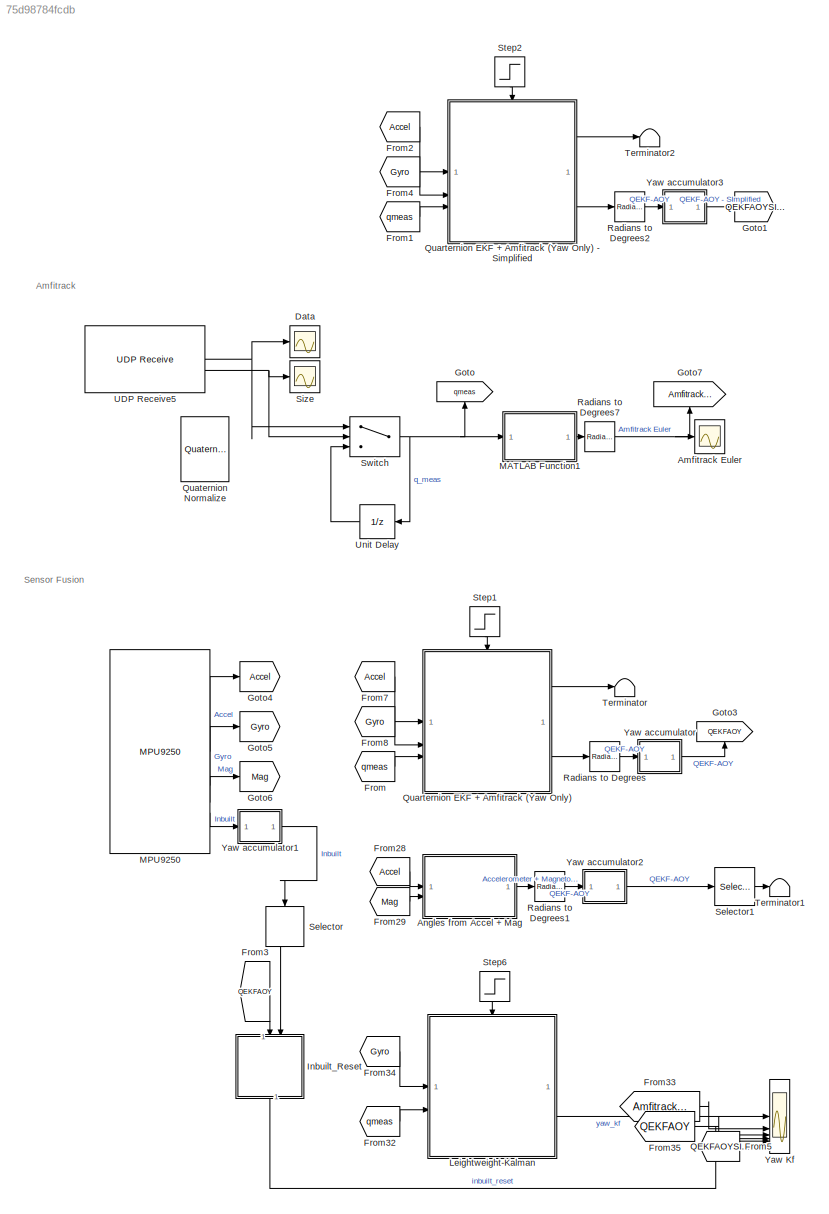
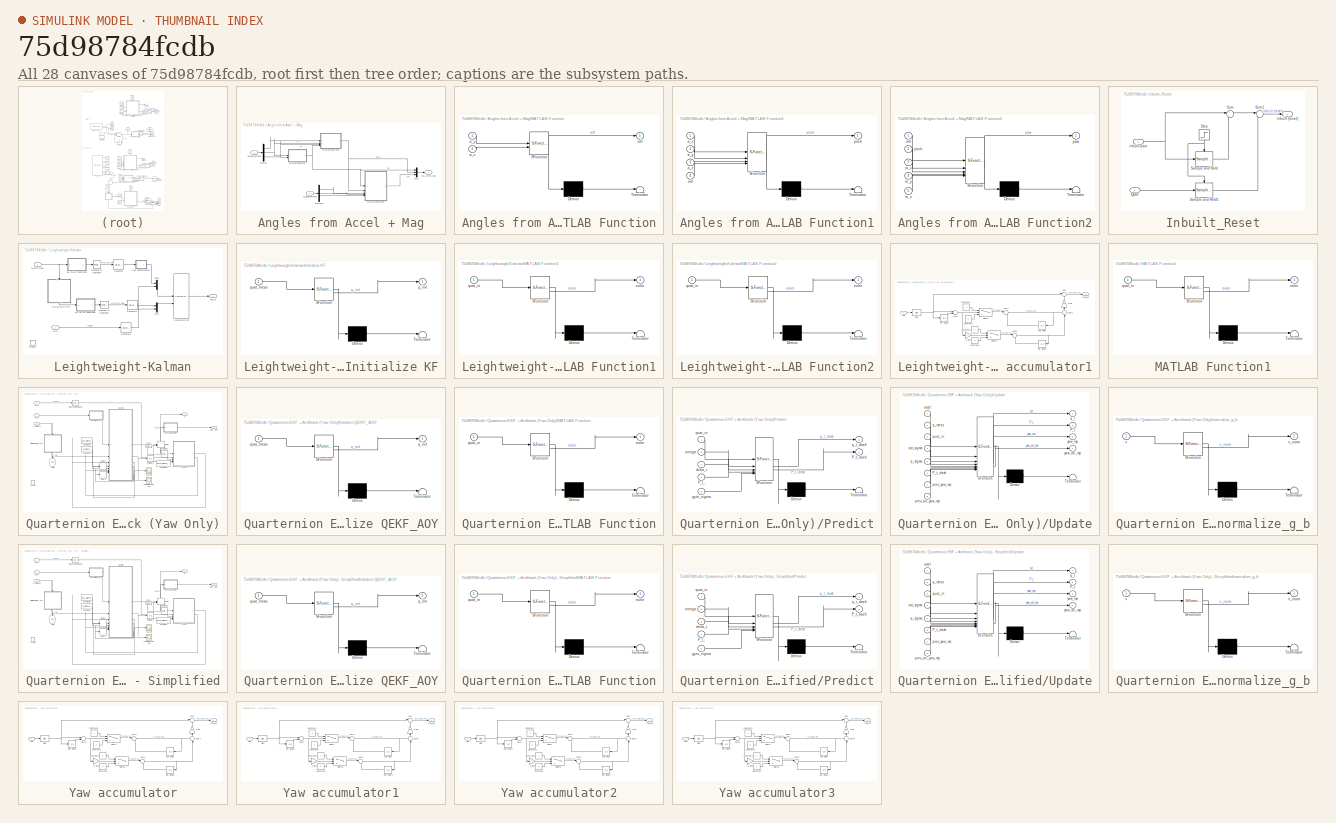
[diagram: thumbnail index - all 28 canvases of the model, root first then tree order]
MODEL slx_75d98784fcdb
KIND model
CONFIG AbsTol = auto
CONFIG EnableMultiTasking = on
CONFIG FixedStep = auto
CONFIG MaxStep = auto
CONFIG MinStep = auto
CONFIG RelTol = 1e-3
CONFIG SampleTimeConstraint = Unconstrained
CONFIG SolverName = FixedStepAuto
CONFIG StartTime = 0.0
CONFIG StopTime = inf
BLOCK [Scope] Amfitrack Euler
  Floating = off
  NumInputPorts = 1
  ScopeSpecificationString = Simulink.scopes.TimeScopeBlockCfg('CurrentConfiguration', extmgr.ConfigurationSet(extmgr.Configuration('Core','General UI',true),extmgr.Configuration('Core','Source UI',true),extmgr.Configuration('Sources','WiredSimulink',true,'DataLoggingVariableName','ScopeData2','DataLogging',true,'DataLoggingSaveFormat','StructureWithTime'),extmgr.Configuration('Visuals','Time Domain',true,'SerializedDisplays'...<+1790ch>
BLOCK [SubSystem] Angles from Accel + Mag
BLOCK [Inport] Angles from Accel + Mag/Accelerometer
BLOCK [Demux] Angles from Accel + Mag/Demux
  Outputs = 3
BLOCK [Demux] Angles from Accel + Mag/Demux2
  Outputs = 3
BLOCK [SubSystem] Angles from Accel + Mag/MATLAB Function
  ErrorFcn = Stateflow.Translate.translate
  PermitHierarchicalResolution = ExplicitOnly
  SFBlockType = MATLAB Function
  TreatAsAtomicUnit = on
BLOCK [Demux] Angles from Accel + Mag/MATLAB Function/ Demux 
  Outputs = 1
BLOCK [S-Function] Angles from Accel + Mag/MATLAB Function/ SFunction 
  EnableBusSupport = on
  FunctionName = sf_sfun
  PortCounts = [2 2]
  SFcnIsStateOwnerBlock = off
  SFunctionDeploymentMode = off
  Tag = Stateflow S-Function 1
BLOCK [Terminator] Angles from Accel + Mag/MATLAB Function/ Terminator 
BLOCK [Inport] Angles from Accel + Mag/MATLAB Function/a_y
BLOCK [Inport] Angles from Accel + Mag/MATLAB Function/a_z
  Port = 2
BLOCK [Outport] Angles from Accel + Mag/MATLAB Function/roll
BLOCK [SubSystem] Angles from Accel + Mag/MATLAB Function1
  ErrorFcn = Stateflow.Translate.translate
  PermitHierarchicalResolution = ExplicitOnly
  SFBlockType = MATLAB Function
  TreatAsAtomicUnit = on
BLOCK [Demux] Angles from Accel + Mag/MATLAB Function1/ Demux 
  Outputs = 1
BLOCK [S-Function] Angles from Accel + Mag/MATLAB Function1/ SFunction 
  EnableBusSupport = on
  FunctionName = sf_sfun
  PortCounts = [4 2]
  SFcnIsStateOwnerBlock = off
  SFunctionDeploymentMode = off
  Tag = Stateflow S-Function 3
BLOCK [Terminator] Angles from Accel + Mag/MATLAB Function1/ Terminator 
BLOCK [Inport] Angles from Accel + Mag/MATLAB Function1/a_x
BLOCK [Inport] Angles from Accel + Mag/MATLAB Function1/a_y
  Port = 2
BLOCK [Inport] Angles from Accel + Mag/MATLAB Function1/a_z
  Port = 3
BLOCK [Outport] Angles from Accel + Mag/MATLAB Function1/pitch
BLOCK [Inport] Angles from Accel + Mag/MATLAB Function1/roll
  Port = 4
BLOCK [SubSystem] Angles from Accel + Mag/MATLAB Function2
  ErrorFcn = Stateflow.Translate.translate
  PermitHierarchicalResolution = ExplicitOnly
  SFBlockType = MATLAB Function
  TreatAsAtomicUnit = on
BLOCK [Demux] Angles from Accel + Mag/MATLAB Function2/ Demux 
  Outputs = 1
BLOCK [S-Function] Angles from Accel + Mag/MATLAB Function2/ SFunction 
  EnableBusSupport = on
  FunctionName = sf_sfun
  PortCounts = [5 2]
  SFcnIsStateOwnerBlock = off
  SFunctionDeploymentMode = off
  Tag = Stateflow S-Function 4
BLOCK [Terminator] Angles from Accel + Mag/MATLAB Function2/ Terminator 
BLOCK [Inport] Angles from Accel + Mag/MATLAB Function2/m_x
  Port = 3
BLOCK [Inport] Angles from Accel + Mag/MATLAB Function2/m_y
  Port = 4
BLOCK [Inport] Angles from Accel + Mag/MATLAB Function2/m_z
  Port = 5
BLOCK [Inport] Angles from Accel + Mag/MATLAB Function2/pitch
  Port = 2
BLOCK [Inport] Angles from Accel + Mag/MATLAB Function2/roll
BLOCK [Outport] Angles from Accel + Mag/MATLAB Function2/yaw
BLOCK [Inport] Angles from Accel + Mag/Magnetometer
  Port = 2
BLOCK [Mux] Angles from Accel + Mag/Mux
  DisplayOption = bar
  Inputs = 3
BLOCK [Outport] Angles from Accel + Mag/roll,pitch,yaw
BLOCK [Scope] Data
  Floating = off
  NumInputPorts = 1
  ScopeSpecificationString = Simulink.scopes.TimeScopeBlockCfg('CurrentConfiguration', extmgr.ConfigurationSet(extmgr.Configuration('Core','General UI',true),extmgr.Configuration('Core','Source UI',true),extmgr.Configuration('Sources','WiredSimulink',true,'DataLoggingVariableName','ScopeData3'),extmgr.Configuration('Visuals','Time Domain',true,'SerializedDisplays',{struct('MinYLimReal','-1.24752','MaxYLimReal','1.23367','YLab...<+7707ch>
BLOCK [From] From
  GotoTag = qmeas
BLOCK [From] From1
  GotoTag = qmeas
BLOCK [From] From2
  GotoTag = Accel
BLOCK [From] From28
  GotoTag = Accel
BLOCK [From] From29
  GotoTag = Mag
BLOCK [From] From3
  GotoTag = QEKFAOY
  NameLocation = left
BLOCK [From] From32
  GotoTag = qmeas
BLOCK [From] From33
  GotoTag = AmfitrackEuler
BLOCK [From] From34
  GotoTag = Gyro
BLOCK [From] From35
  GotoTag = QEKFAOY
BLOCK [From] From4
  GotoTag = Gyro
BLOCK [From] From5
  GotoTag = QEKFAOYSImplified
BLOCK [From] From7
  GotoTag = Accel
BLOCK [From] From8
  GotoTag = Gyro
BLOCK [Goto] Goto
  GotoTag = qmeas
  NameLocation = right
BLOCK [Goto] Goto1
  GotoTag = QEKFAOYSImplified
BLOCK [Goto] Goto3
  GotoTag = QEKFAOY
  NameLocation = right
BLOCK [Goto] Goto4
  GotoTag = Accel
BLOCK [Goto] Goto5
  GotoTag = Gyro
BLOCK [Goto] Goto6
  GotoTag = Mag
BLOCK [Goto] Goto7
  GotoTag = AmfitrackEuler
  NameLocation = right
BLOCK [SubSystem] Inbuilt_Reset
  NameLocation = left
BLOCK [Inport] Inbuilt_Reset/QEKF
BLOCK [Reference] Inbuilt_Reset/Sample and Hold  REF=dspsigops/Sample
and Hold
  LibrarySourceBlock = dsphdlsupportsigops/Sample\nand Hold
  SourceBlock = dspsigops/Sample\nand Hold
  SourceType = Sample and Hold
BLOCK [Reference] Inbuilt_Reset/Sample and Hold1  REF=dspsigops/Sample
and Hold
  LibrarySourceBlock = dsphdlsupportsigops/Sample\nand Hold
  SourceBlock = dspsigops/Sample\nand Hold
  SourceType = Sample and Hold
BLOCK [Step] Inbuilt_Reset/Step
  NameLocation = left
  SampleTime = 0
  Time = inbuilt_reset_time
BLOCK [Sum] Inbuilt_Reset/Sum
  Inputs = |+-
BLOCK [Sum] Inbuilt_Reset/Sum1
  Inputs = |++
BLOCK [Outport] Inbuilt_Reset/inbuilt (reset)
BLOCK [Inport] Inbuilt_Reset/inbuilt-yaw
  Port = 2
BLOCK [SubSystem] Leightweight-Kalman
BLOCK [EnablePort] Leightweight-Kalman/Enable
BLOCK [Inport] Leightweight-Kalman/Gyro
BLOCK [SubSystem] Leightweight-Kalman/Initialize KF
  ErrorFcn = Stateflow.Translate.translate
  NameLocation = left
  PermitHierarchicalResolution = ExplicitOnly
  SFBlockType = MATLAB Function
  TreatAsAtomicUnit = on
BLOCK [Demux] Leightweight-Kalman/Initialize KF/ Demux 
  Outputs = 1
BLOCK [S-Function] Leightweight-Kalman/Initialize KF/ SFunction 
  EnableBusSupport = on
  FunctionName = sf_sfun
  PortCounts = [1 2]
  SFcnIsStateOwnerBlock = off
  SFunctionDeploymentMode = off
  Tag = Stateflow S-Function 9
BLOCK [Terminator] Leightweight-Kalman/Initialize KF/ Terminator 
BLOCK [Outport] Leightweight-Kalman/Initialize KF/q_init
BLOCK [Inport] Leightweight-Kalman/Initialize KF/quat_meas
BLOCK [Reference] Leightweight-Kalman/Kalman Filter  REF=ctrlSharedLib/Kalman Filter
  SourceBlock = ctrlSharedLib/Kalman Filter
  SourceType = ctrlKalmanFilter
BLOCK [SubSystem] Leightweight-Kalman/MATLAB Function1
  ErrorFcn = Stateflow.Translate.translate
  PermitHierarchicalResolution = ExplicitOnly
  SFBlockType = MATLAB Function
  TreatAsAtomicUnit = on
BLOCK [Demux] Leightweight-Kalman/MATLAB Function1/ Demux 
  Outputs = 1
BLOCK [S-Function] Leightweight-Kalman/MATLAB Function1/ SFunction 
  EnableBusSupport = on
  FunctionName = sf_sfun
  PortCounts = [1 2]
  SFcnIsStateOwnerBlock = off
  SFunctionDeploymentMode = off
  Tag = Stateflow S-Function 10
BLOCK [Terminator] Leightweight-Kalman/MATLAB Function1/ Terminator 
BLOCK [Outport] Leightweight-Kalman/MATLAB Function1/euler
BLOCK [Inport] Leightweight-Kalman/MATLAB Function1/quat_in
BLOCK [SubSystem] Leightweight-Kalman/MATLAB Function2
  ErrorFcn = Stateflow.Translate.translate
  PermitHierarchicalResolution = ExplicitOnly
  SFBlockType = MATLAB Function
  TreatAsAtomicUnit = on
BLOCK [Demux] Leightweight-Kalman/MATLAB Function2/ Demux 
  Outputs = 1
BLOCK [S-Function] Leightweight-Kalman/MATLAB Function2/ SFunction 
  EnableBusSupport = on
  FunctionName = sf_sfun
  PortCounts = [1 2]
  SFcnIsStateOwnerBlock = off
  SFunctionDeploymentMode = off
  Tag = Stateflow S-Function 11
BLOCK [Terminator] Leightweight-Kalman/MATLAB Function2/ Terminator 
BLOCK [Outport] Leightweight-Kalman/MATLAB Function2/euler
BLOCK [Inport] Leightweight-Kalman/MATLAB Function2/quat_in
BLOCK [Mux] Leightweight-Kalman/Mux
  DisplayOption = bar
  Inputs = 2
BLOCK [Mux] Leightweight-Kalman/Mux1
  DisplayOption = bar
  Inputs = 2
BLOCK [Reference] Leightweight-Kalman/Radians to Degrees1  REF=simulink_extras/Transformations/Radians
to Degrees
  SourceBlock = simulink_extras/Transformations/Radians\nto Degrees
  SourceType = RadiansToDegrees
BLOCK [Reference] Leightweight-Kalman/Radians to Degrees7  REF=simulink_extras/Transformations/Radians
to Degrees
  SourceBlock = simulink_extras/Transformations/Radians\nto Degrees
  SourceType = RadiansToDegrees
BLOCK [Selector] Leightweight-Kalman/Selector
  IndexOptions = Index vector (dialog)
  Indices = [3]
  InputPortWidth = 3
  OutputSizes = 1
BLOCK [Selector] Leightweight-Kalman/Selector1
  IndexOptions = Index vector (dialog)
  Indices = [3]
  InputPortWidth = 3
  OutputSizes = 1
BLOCK [Selector] Leightweight-Kalman/Selector2
  IndexOptions = Index vector (dialog)
  Indices = [3]
  InputPortWidth = 3
  OutputSizes = 1
BLOCK [SubSystem] Leightweight-Kalman/Yaw accumulator1
  ShowPortLabels = none
BLOCK [Bias] Leightweight-Kalman/Yaw accumulator1/Bias
  SaturateOnIntegerOverflow = off
BLOCK [Constant] Leightweight-Kalman/Yaw accumulator1/Constant4
BLOCK [Constant] Leightweight-Kalman/Yaw accumulator1/Constant5
  Value = 0
BLOCK [Constant] Leightweight-Kalman/Yaw accumulator1/Constant8
BLOCK [Constant] Leightweight-Kalman/Yaw accumulator1/Constant9
  Value = 0
BLOCK [Gain] Leightweight-Kalman/Yaw accumulator1/Gain
  Gain = 360
  NameLocation = right
BLOCK [Gain] Leightweight-Kalman/Yaw accumulator1/Gain3
  Gain = -1
BLOCK [Sum] Leightweight-Kalman/Yaw accumulator1/Sum
  Inputs = |++
BLOCK [Sum] Leightweight-Kalman/Yaw accumulator1/Sum1
  Inputs = |++
BLOCK [Sum] Leightweight-Kalman/Yaw accumulator1/Sum2
  Inputs = |-+
BLOCK [Sum] Leightweight-Kalman/Yaw accumulator1/Sum5
  Inputs = |++
BLOCK [Sum] Leightweight-Kalman/Yaw accumulator1/Sum6
  Inputs = +-|
  NameLocation = right
BLOCK [Switch] Leightweight-Kalman/Yaw accumulator1/Switch
  Criteria = u2 > Threshold
  InputSameDT = off
  SaturateOnIntegerOverflow = off
  Threshold = 180
BLOCK [Switch] Leightweight-Kalman/Yaw accumulator1/Switch1
  Criteria = u2 > Threshold
  InputSameDT = off
  SaturateOnIntegerOverflow = off
  Threshold = 180
BLOCK [UnitDelay] Leightweight-Kalman/Yaw accumulator1/Unit Delay
  HasFrameUpgradeWarning = on
  SampleTime = -1
BLOCK [UnitDelay] Leightweight-Kalman/Yaw accumulator1/Unit Delay1
  HasFrameUpgradeWarning = on
  SampleTime = -1
BLOCK [UnitDelay] Leightweight-Kalman/Yaw accumulator1/Unit Delay3
  HasFrameUpgradeWarning = on
  SampleTime = -1
BLOCK [Inport] Leightweight-Kalman/Yaw accumulator1/yaw
BLOCK [Outport] Leightweight-Kalman/Yaw accumulator1/yaw_acc
BLOCK [Inport] Leightweight-Kalman/q_amfitrack
  Port = 2
BLOCK [Outport] Leightweight-Kalman/yaw_kf
BLOCK [SubSystem] MATLAB Function1
  ErrorFcn = Stateflow.Translate.translate
  PermitHierarchicalResolution = ExplicitOnly
  SFBlockType = MATLAB Function
  TreatAsAtomicUnit = on
BLOCK [Demux] MATLAB Function1/ Demux 
  Outputs = 1
BLOCK [S-Function] MATLAB Function1/ SFunction 
  EnableBusSupport = on
  FunctionName = sf_sfun
  PortCounts = [1 2]
  SFcnIsStateOwnerBlock = off
  SFunctionDeploymentMode = off
  Tag = Stateflow S-Function 27
BLOCK [Terminator] MATLAB Function1/ Terminator 
BLOCK [Outport] MATLAB Function1/euler
BLOCK [Inport] MATLAB Function1/quat_in
BLOCK [Reference] MPU9250  REF=bbblueSensorLib/MPU9250
  SourceBlock = bbblueSensorLib/MPU9250
  SourceType = beagleboneblue.bbblueMPU9250
BLOCK [SubSystem] Quarternion EKF + Amfitrack (Yaw Only)
BLOCK [SubSystem] Quarternion EKF + Amfitrack (Yaw Only) - Simplified
BLOCK [Inport] Quarternion EKF + Amfitrack (Yaw Only) - Simplified/Accel
BLOCK [Constant] Quarternion EKF + Amfitrack (Yaw Only) - Simplified/Constant
  Value = delta_t
BLOCK [Constant] Quarternion EKF + Amfitrack (Yaw Only) - Simplified/Constant1
  Value = gyro_sigma_3d
BLOCK [Constant] Quarternion EKF + Amfitrack (Yaw Only) - Simplified/Constant2
  Value = q_sigma
BLOCK [Constant] Quarternion EKF + Amfitrack (Yaw Only) - Simplified/Constant3
  Value = acc_sigma
BLOCK [Scope] Quarternion EKF + Amfitrack (Yaw Only) - Simplified/Cumulative Yaw mp
  Floating = off
  NumInputPorts = 1
  ScopeSpecificationString = Simulink.scopes.TimeScopeBlockCfg('CurrentConfiguration', extmgr.ConfigurationSet(extmgr.Configuration('Core','General UI',true),extmgr.Configuration('Core','Source UI',true),extmgr.Configuration('Sources','WiredSimulink',true,'DataLoggingVariableName','ScopeData1'),extmgr.Configuration('Visuals','Time Domain',true,'SerializedDisplays',{struct('MinYLimReal','-1.78769','MaxYLimReal','7.99209','YLab...<+1564ch>
BLOCK [Reference] Quarternion EKF + Amfitrack (Yaw Only) - Simplified/Degrees to Radians  REF=simulink_extras/Transformations/Degrees to
Radians
  SourceBlock = simulink_extras/Transformations/Degrees to\nRadians
  SourceType = DegreesToRadians
BLOCK [Delay] Quarternion EKF + Amfitrack (Yaw Only) - Simplified/Delay
  DelayLength = 1
  InitialCondition = [1,0,0,0]
  InitialConditionSource = Input port
  InputPortMap = u0,p4
  SampleTime = delta_t
BLOCK [Delay] Quarternion EKF + Amfitrack (Yaw Only) - Simplified/Delay1
  DelayLength = 1
  InitialCondition = [0,0]
  InputPortMap = u0
  SampleTime = delta_t
BLOCK [Delay] Quarternion EKF + Amfitrack (Yaw Only) - Simplified/Delay2
  DelayLength = 1
  InitialCondition = [0,0]
  InputPortMap = u0
  SampleTime = delta_t
BLOCK [EnablePort] Quarternion EKF + Amfitrack (Yaw Only) - Simplified/Enable
BLOCK [From] Quarternion EKF + Amfitrack (Yaw Only) - Simplified/From
  GotoTag = qinit
BLOCK [Goto] Quarternion EKF + Amfitrack (Yaw Only) - Simplified/Goto
  GotoTag = qinit
  NameLocation = left
BLOCK [Inport] Quarternion EKF + Amfitrack (Yaw Only) - Simplified/Gyro
  Port = 2
BLOCK [SubSystem] Quarternion EKF + Amfitrack (Yaw Only) - Simplified/Initialize QEKF_AOY
  ErrorFcn = Stateflow.Translate.translate
  NameLocation = left
  PermitHierarchicalResolution = ExplicitOnly
  SFBlockType = MATLAB Function
  TreatAsAtomicUnit = on
BLOCK [Demux] Quarternion EKF + Amfitrack (Yaw Only) - Simplified/Initialize QEKF_AOY/ Demux 
  Outputs = 1
BLOCK [S-Function] Quarternion EKF + Amfitrack (Yaw Only) - Simplified/Initialize QEKF_AOY/ SFunction 
  EnableBusSupport = on
  FunctionName = sf_sfun
  PortCounts = [1 2]
  SFcnIsStateOwnerBlock = off
  SFunctionDeploymentMode = off
  Tag = Stateflow S-Function 2
BLOCK [Terminator] Quarternion EKF + Amfitrack (Yaw Only) - Simplified/Initialize QEKF_AOY/ Terminator 
BLOCK [Outport] Quarternion EKF + Amfitrack (Yaw Only) - Simplified/Initialize QEKF_AOY/q_init
BLOCK [Inport] Quarternion EKF + Amfitrack (Yaw Only) - Simplified/Initialize QEKF_AOY/quat_meas
BLOCK [SubSystem] Quarternion EKF + Amfitrack (Yaw Only) - Simplified/MATLAB Function
  ErrorFcn = Stateflow.Translate.translate
  PermitHierarchicalResolution = ExplicitOnly
  SFBlockType = MATLAB Function
  TreatAsAtomicUnit = on
BLOCK [Demux] Quarternion EKF + Amfitrack (Yaw Only) - Simplified/MATLAB Function/ Demux 
  Outputs = 1
BLOCK [S-Function] Quarternion EKF + Amfitrack (Yaw Only) - Simplified/MATLAB Function/ SFunction 
  EnableBusSupport = on
  FunctionName = sf_sfun
  PortCounts = [1 2]
  SFcnIsStateOwnerBlock = off
  SFunctionDeploymentMode = off
  Tag = Stateflow S-Function 5
BLOCK [Terminator] Quarternion EKF + Amfitrack (Yaw Only) - Simplified/MATLAB Function/ Terminator 
BLOCK [Outport] Quarternion EKF + Amfitrack (Yaw Only) - Simplified/MATLAB Function/euler
BLOCK [Inport] Quarternion EKF + Amfitrack (Yaw Only) - Simplified/MATLAB Function/quat_in
BLOCK [SubSystem] Quarternion EKF + Amfitrack (Yaw Only) - Simplified/Predict
  ErrorFcn = Stateflow.Translate.translate
  PermitHierarchicalResolution = ExplicitOnly
  SFBlockType = MATLAB Function
  TreatAsAtomicUnit = on
BLOCK [Demux] Quarternion EKF + Amfitrack (Yaw Only) - Simplified/Predict/ Demux 
  Outputs = 1
BLOCK [S-Function] Quarternion EKF + Amfitrack (Yaw Only) - Simplified/Predict/ SFunction 
  EnableBusSupport = on
  FunctionName = sf_sfun
  PortCounts = [5 3]
  SFcnIsStateOwnerBlock = off
  SFunctionDeploymentMode = off
  Tag = Stateflow S-Function 6
BLOCK [Terminator] Quarternion EKF + Amfitrack (Yaw Only) - Simplified/Predict/ Terminator 
BLOCK [Inport] Quarternion EKF + Amfitrack (Yaw Only) - Simplified/Predict/P_t_
  Port = 4
BLOCK [Outport] Quarternion EKF + Amfitrack (Yaw Only) - Simplified/Predict/P_t_dash
  Port = 2
BLOCK [Inport] Quarternion EKF + Amfitrack (Yaw Only) - Simplified/Predict/delta_t
  Port = 3
BLOCK [Inport] Quarternion EKF + Amfitrack (Yaw Only) - Simplified/Predict/gyro_sigma
  Port = 5
BLOCK [Inport] Quarternion EKF + Amfitrack (Yaw Only) - Simplified/Predict/omega
  Port = 2
BLOCK [Outport] Quarternion EKF + Amfitrack (Yaw Only) - Simplified/Predict/q_t_dash
BLOCK [Inport] Quarternion EKF + Amfitrack (Yaw Only) - Simplified/Predict/quat_in
BLOCK [UnitDelay] Quarternion EKF + Amfitrack (Yaw Only) - Simplified/Unit Delay1
  HasFrameUpgradeWarning = on
  InitialCondition = P_0
  SampleTime = delta_t
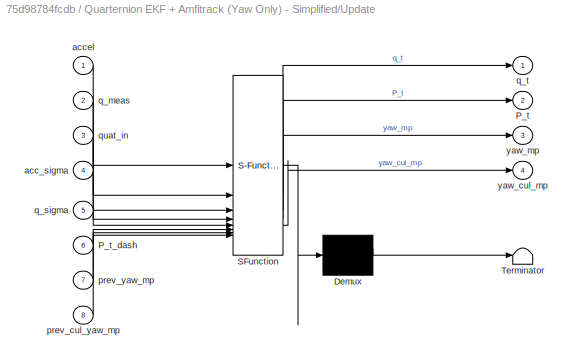
BLOCK [SubSystem] Quarternion EKF + Amfitrack (Yaw Only) - Simplified/Update
  ErrorFcn = Stateflow.Translate.translate
  PermitHierarchicalResolution = ExplicitOnly
  SFBlockType = MATLAB Function
  SystemSampleTime = delta_t
  TreatAsAtomicUnit = on
BLOCK [Demux] Quarternion EKF + Amfitrack (Yaw Only) - Simplified/Update/ Demux 
  Outputs = 1
BLOCK [S-Function] Quarternion EKF + Amfitrack (Yaw Only) - Simplified/Update/ SFunction 
  EnableBusSupport = on
  FunctionName = sf_sfun
  PortCounts = [8 5]
  SFcnIsStateOwnerBlock = off
  SFunctionDeploymentMode = off
  Tag = Stateflow S-Function 7
BLOCK [Terminator] Quarternion EKF + Amfitrack (Yaw Only) - Simplified/Update/ Terminator 
BLOCK [Outport] Quarternion EKF + Amfitrack (Yaw Only) - Simplified/Update/P_t
  Port = 2
BLOCK [Inport] Quarternion EKF + Amfitrack (Yaw Only) - Simplified/Update/P_t_dash
  Port = 6
BLOCK [Inport] Quarternion EKF + Amfitrack (Yaw Only) - Simplified/Update/acc_sigma
  Port = 4
BLOCK [Inport] Quarternion EKF + Amfitrack (Yaw Only) - Simplified/Update/accel
BLOCK [Inport] Quarternion EKF + Amfitrack (Yaw Only) - Simplified/Update/prev_cul_yaw_mp
  Port = 8
BLOCK [Inport] Quarternion EKF + Amfitrack (Yaw Only) - Simplified/Update/prev_yaw_mp
  Port = 7
BLOCK [Inport] Quarternion EKF + Amfitrack (Yaw Only) - Simplified/Update/q_meas
  Port = 2
BLOCK [Inport] Quarternion EKF + Amfitrack (Yaw Only) - Simplified/Update/q_sigma
  Port = 5
BLOCK [Outport] Quarternion EKF + Amfitrack (Yaw Only) - Simplified/Update/q_t
BLOCK [Inport] Quarternion EKF + Amfitrack (Yaw Only) - Simplified/Update/quat_in
  Port = 3
BLOCK [Outport] Quarternion EKF + Amfitrack (Yaw Only) - Simplified/Update/yaw_cul_mp
  Port = 4
BLOCK [Outport] Quarternion EKF + Amfitrack (Yaw Only) - Simplified/Update/yaw_mp
  Port = 3
BLOCK [Scope] Quarternion EKF + Amfitrack (Yaw Only) - Simplified/Yaw_mp
  Floating = off
  NumInputPorts = 1
  ScopeSpecificationString = Simulink.scopes.TimeScopeBlockCfg('CurrentConfiguration', extmgr.ConfigurationSet(extmgr.Configuration('Core','General UI',true),extmgr.Configuration('Core','Source UI',true),extmgr.Configuration('Sources','WiredSimulink',true,'DataLoggingVariableName','ScopeData2'),extmgr.Configuration('Visuals','Time Domain',true,'SerializedDisplays',{struct('MinYLimReal','-3.92273','MaxYLimReal','3.92158','YLab...<+1597ch>
BLOCK [Outport] Quarternion EKF + Amfitrack (Yaw Only) - Simplified/euler_qekf
  Port = 2
BLOCK [SubSystem] Quarternion EKF + Amfitrack (Yaw Only) - Simplified/normalize_g_b
  ErrorFcn = Stateflow.Translate.translate
  PermitHierarchicalResolution = ExplicitOnly
  SFBlockType = MATLAB Function
  TreatAsAtomicUnit = on
BLOCK [Demux] Quarternion EKF + Amfitrack (Yaw Only) - Simplified/normalize_g_b/ Demux 
  Outputs = 1
BLOCK [S-Function] Quarternion EKF + Amfitrack (Yaw Only) - Simplified/normalize_g_b/ SFunction 
  EnableBusSupport = on
  FunctionName = sf_sfun
  PortCounts = [1 2]
  SFcnIsStateOwnerBlock = off
  SFunctionDeploymentMode = off
  Tag = Stateflow S-Function 8
BLOCK [Terminator] Quarternion EKF + Amfitrack (Yaw Only) - Simplified/normalize_g_b/ Terminator 
BLOCK [Inport] Quarternion EKF + Amfitrack (Yaw Only) - Simplified/normalize_g_b/v
BLOCK [Outport] Quarternion EKF + Amfitrack (Yaw Only) - Simplified/normalize_g_b/v_norm
BLOCK [Outport] Quarternion EKF + Amfitrack (Yaw Only) - Simplified/q
BLOCK [Inport] Quarternion EKF + Amfitrack (Yaw Only) - Simplified/q_amfitrack
  Port = 3
BLOCK [Inport] Quarternion EKF + Amfitrack (Yaw Only)/Accel
BLOCK [Constant] Quarternion EKF + Amfitrack (Yaw Only)/Constant
  Value = delta_t
BLOCK [Constant] Quarternion EKF + Amfitrack (Yaw Only)/Constant1
  Value = gyro_sigma_3d
BLOCK [Constant] Quarternion EKF + Amfitrack (Yaw Only)/Constant2
  Value = q_sigma
BLOCK [Constant] Quarternion EKF + Amfitrack (Yaw Only)/Constant3
  Value = acc_sigma
BLOCK [Scope] Quarternion EKF + Amfitrack (Yaw Only)/Cumulative Yaw mp
  Floating = off
  NumInputPorts = 1
  ScopeSpecificationString = Simulink.scopes.TimeScopeBlockCfg('CurrentConfiguration', extmgr.ConfigurationSet(extmgr.Configuration('Core','General UI',true),extmgr.Configuration('Core','Source UI',true),extmgr.Configuration('Sources','WiredSimulink',true,'DataLoggingVariableName','ScopeData1'),extmgr.Configuration('Visuals','Time Domain',true,'SerializedDisplays',{struct('MinYLimReal','-1.78769','MaxYLimReal','7.99209','YLab...<+1564ch>
BLOCK [Reference] Quarternion EKF + Amfitrack (Yaw Only)/Degrees to Radians  REF=simulink_extras/Transformations/Degrees to
Radians
  SourceBlock = simulink_extras/Transformations/Degrees to\nRadians
  SourceType = DegreesToRadians
BLOCK [Delay] Quarternion EKF + Amfitrack (Yaw Only)/Delay
  DelayLength = 1
  InitialCondition = [1,0,0,0]
  InitialConditionSource = Input port
  InputPortMap = u0,p4
  SampleTime = delta_t
BLOCK [Delay] Quarternion EKF + Amfitrack (Yaw Only)/Delay1
  DelayLength = 1
  InitialCondition = [0,0]
  InputPortMap = u0
  SampleTime = delta_t
BLOCK [Delay] Quarternion EKF + Amfitrack (Yaw Only)/Delay2
  DelayLength = 1
  InitialCondition = [0,0]
  InputPortMap = u0
  SampleTime = delta_t
BLOCK [EnablePort] Quarternion EKF + Amfitrack (Yaw Only)/Enable
BLOCK [From] Quarternion EKF + Amfitrack (Yaw Only)/From
  GotoTag = qinit
BLOCK [Goto] Quarternion EKF + Amfitrack (Yaw Only)/Goto
  GotoTag = qinit
  NameLocation = left
BLOCK [Inport] Quarternion EKF + Amfitrack (Yaw Only)/Gyro
  Port = 2
BLOCK [SubSystem] Quarternion EKF + Amfitrack (Yaw Only)/Initialize QEKF_AOY
  ErrorFcn = Stateflow.Translate.translate
  NameLocation = left
  PermitHierarchicalResolution = ExplicitOnly
  SFBlockType = MATLAB Function
  TreatAsAtomicUnit = on
BLOCK [Demux] Quarternion EKF + Amfitrack (Yaw Only)/Initialize QEKF_AOY/ Demux 
  Outputs = 1
BLOCK [S-Function] Quarternion EKF + Amfitrack (Yaw Only)/Initialize QEKF_AOY/ SFunction 
  EnableBusSupport = on
  FunctionName = sf_sfun
  PortCounts = [1 2]
  SFcnIsStateOwnerBlock = off
  SFunctionDeploymentMode = off
  Tag = Stateflow S-Function 41
BLOCK [Terminator] Quarternion EKF + Amfitrack (Yaw Only)/Initialize QEKF_AOY/ Terminator 
BLOCK [Outport] Quarternion EKF + Amfitrack (Yaw Only)/Initialize QEKF_AOY/q_init
BLOCK [Inport] Quarternion EKF + Amfitrack (Yaw Only)/Initialize QEKF_AOY/quat_meas
BLOCK [SubSystem] Quarternion EKF + Amfitrack (Yaw Only)/MATLAB Function
  ErrorFcn = Stateflow.Translate.translate
  PermitHierarchicalResolution = ExplicitOnly
  SFBlockType = MATLAB Function
  TreatAsAtomicUnit = on
BLOCK [Demux] Quarternion EKF + Amfitrack (Yaw Only)/MATLAB Function/ Demux 
  Outputs = 1
BLOCK [S-Function] Quarternion EKF + Amfitrack (Yaw Only)/MATLAB Function/ SFunction 
  EnableBusSupport = on
  FunctionName = sf_sfun
  PortCounts = [1 2]
  SFcnIsStateOwnerBlock = off
  SFunctionDeploymentMode = off
  Tag = Stateflow S-Function 33
BLOCK [Terminator] Quarternion EKF + Amfitrack (Yaw Only)/MATLAB Function/ Terminator 
BLOCK [Outport] Quarternion EKF + Amfitrack (Yaw Only)/MATLAB Function/euler
BLOCK [Inport] Quarternion EKF + Amfitrack (Yaw Only)/MATLAB Function/quat_in
BLOCK [SubSystem] Quarternion EKF + Amfitrack (Yaw Only)/Predict
  ErrorFcn = Stateflow.Translate.translate
  PermitHierarchicalResolution = ExplicitOnly
  SFBlockType = MATLAB Function
  TreatAsAtomicUnit = on
BLOCK [Demux] Quarternion EKF + Amfitrack (Yaw Only)/Predict/ Demux 
  Outputs = 1
BLOCK [S-Function] Quarternion EKF + Amfitrack (Yaw Only)/Predict/ SFunction 
  EnableBusSupport = on
  FunctionName = sf_sfun
  PortCounts = [5 3]
  SFcnIsStateOwnerBlock = off
  SFunctionDeploymentMode = off
  Tag = Stateflow S-Function 34
BLOCK [Terminator] Quarternion EKF + Amfitrack (Yaw Only)/Predict/ Terminator 
BLOCK [Inport] Quarternion EKF + Amfitrack (Yaw Only)/Predict/P_t_
  Port = 4
BLOCK [Outport] Quarternion EKF + Amfitrack (Yaw Only)/Predict/P_t_dash
  Port = 2
BLOCK [Inport] Quarternion EKF + Amfitrack (Yaw Only)/Predict/delta_t
  Port = 3
BLOCK [Inport] Quarternion EKF + Amfitrack (Yaw Only)/Predict/gyro_sigma
  Port = 5
BLOCK [Inport] Quarternion EKF + Amfitrack (Yaw Only)/Predict/omega
  Port = 2
BLOCK [Outport] Quarternion EKF + Amfitrack (Yaw Only)/Predict/q_t_dash
BLOCK [Inport] Quarternion EKF + Amfitrack (Yaw Only)/Predict/quat_in
BLOCK [UnitDelay] Quarternion EKF + Amfitrack (Yaw Only)/Unit Delay1
  HasFrameUpgradeWarning = on
  InitialCondition = P_0
  SampleTime = delta_t
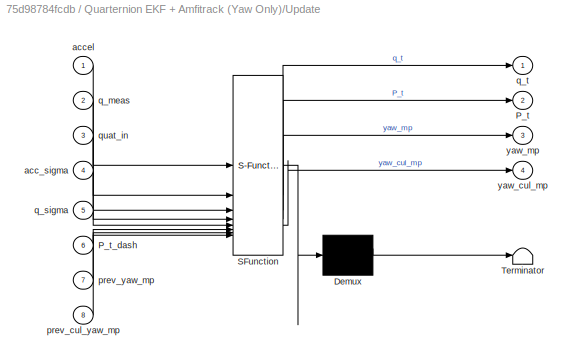
BLOCK [SubSystem] Quarternion EKF + Amfitrack (Yaw Only)/Update
  ErrorFcn = Stateflow.Translate.translate
  PermitHierarchicalResolution = ExplicitOnly
  SFBlockType = MATLAB Function
  SystemSampleTime = delta_t
  TreatAsAtomicUnit = on
BLOCK [Demux] Quarternion EKF + Amfitrack (Yaw Only)/Update/ Demux 
  Outputs = 1
BLOCK [S-Function] Quarternion EKF + Amfitrack (Yaw Only)/Update/ SFunction 
  EnableBusSupport = on
  FunctionName = sf_sfun
  PortCounts = [8 5]
  SFcnIsStateOwnerBlock = off
  SFunctionDeploymentMode = off
  Tag = Stateflow S-Function 35
BLOCK [Terminator] Quarternion EKF + Amfitrack (Yaw Only)/Update/ Terminator 
BLOCK [Outport] Quarternion EKF + Amfitrack (Yaw Only)/Update/P_t
  Port = 2
BLOCK [Inport] Quarternion EKF + Amfitrack (Yaw Only)/Update/P_t_dash
  Port = 6
BLOCK [Inport] Quarternion EKF + Amfitrack (Yaw Only)/Update/acc_sigma
  Port = 4
BLOCK [Inport] Quarternion EKF + Amfitrack (Yaw Only)/Update/accel
BLOCK [Inport] Quarternion EKF + Amfitrack (Yaw Only)/Update/prev_cul_yaw_mp
  Port = 8
BLOCK [Inport] Quarternion EKF + Amfitrack (Yaw Only)/Update/prev_yaw_mp
  Port = 7
BLOCK [Inport] Quarternion EKF + Amfitrack (Yaw Only)/Update/q_meas
  Port = 2
BLOCK [Inport] Quarternion EKF + Amfitrack (Yaw Only)/Update/q_sigma
  Port = 5
BLOCK [Outport] Quarternion EKF + Amfitrack (Yaw Only)/Update/q_t
BLOCK [Inport] Quarternion EKF + Amfitrack (Yaw Only)/Update/quat_in
  Port = 3
BLOCK [Outport] Quarternion EKF + Amfitrack (Yaw Only)/Update/yaw_cul_mp
  Port = 4
BLOCK [Outport] Quarternion EKF + Amfitrack (Yaw Only)/Update/yaw_mp
  Port = 3
BLOCK [Scope] Quarternion EKF + Amfitrack (Yaw Only)/Yaw_mp
  Floating = off
  NumInputPorts = 1
  ScopeSpecificationString = Simulink.scopes.TimeScopeBlockCfg('CurrentConfiguration', extmgr.ConfigurationSet(extmgr.Configuration('Core','General UI',true),extmgr.Configuration('Core','Source UI',true),extmgr.Configuration('Sources','WiredSimulink',true,'DataLoggingVariableName','ScopeData2'),extmgr.Configuration('Visuals','Time Domain',true,'SerializedDisplays',{struct('MinYLimReal','-3.92273','MaxYLimReal','3.92158','YLab...<+1597ch>
BLOCK [Outport] Quarternion EKF + Amfitrack (Yaw Only)/euler_qekf
  Port = 2
BLOCK [SubSystem] Quarternion EKF + Amfitrack (Yaw Only)/normalize_g_b
  ErrorFcn = Stateflow.Translate.translate
  PermitHierarchicalResolution = ExplicitOnly
  SFBlockType = MATLAB Function
  TreatAsAtomicUnit = on
BLOCK [Demux] Quarternion EKF + Amfitrack (Yaw Only)/normalize_g_b/ Demux 
  Outputs = 1
BLOCK [S-Function] Quarternion EKF + Amfitrack (Yaw Only)/normalize_g_b/ SFunction 
  EnableBusSupport = on
  FunctionName = sf_sfun
  PortCounts = [1 2]
  SFcnIsStateOwnerBlock = off
  SFunctionDeploymentMode = off
  Tag = Stateflow S-Function 36
BLOCK [Terminator] Quarternion EKF + Amfitrack (Yaw Only)/normalize_g_b/ Terminator 
BLOCK [Inport] Quarternion EKF + Amfitrack (Yaw Only)/normalize_g_b/v
BLOCK [Outport] Quarternion EKF + Amfitrack (Yaw Only)/normalize_g_b/v_norm
BLOCK [Outport] Quarternion EKF + Amfitrack (Yaw Only)/q
BLOCK [Inport] Quarternion EKF + Amfitrack (Yaw Only)/q_amfitrack
  Port = 3
BLOCK [Reference] Quaternion Normalize  REF=sharedutil/Quaternion
Normalize
  Commented = on
  LibrarySourceBlock = aerolibutil/Quaternion\nNormalize
  NameLocation = right
  SourceBlock = sharedutil/Quaternion\nNormalize
  SourceType = Quaternion Normalize
BLOCK [Reference] Radians to Degrees  REF=simulink_extras/Transformations/Radians
to Degrees
  SourceBlock = simulink_extras/Transformations/Radians\nto Degrees
  SourceType = RadiansToDegrees
BLOCK [Reference] Radians to Degrees1  REF=simulink_extras/Transformations/Radians
to Degrees
  SourceBlock = simulink_extras/Transformations/Radians\nto Degrees
  SourceType = RadiansToDegrees
BLOCK [Reference] Radians to Degrees2  REF=simulink_extras/Transformations/Radians
to Degrees
  SourceBlock = simulink_extras/Transformations/Radians\nto Degrees
  SourceType = RadiansToDegrees
BLOCK [Reference] Radians to Degrees7  REF=simulink_extras/Transformations/Radians
to Degrees
  SourceBlock = simulink_extras/Transformations/Radians\nto Degrees
  SourceType = RadiansToDegrees
BLOCK [Selector] Selector
  IndexOptions = Index vector (dialog)
  Indices = [3]
  InputPortWidth = 3
  NameLocation = left
  OutputSizes = 1
BLOCK [Selector] Selector1
  IndexOptions = Index vector (dialog)
  Indices = [3]
  InputPortWidth = 3
  OutputSizes = 1
BLOCK [Scope] Size
  Floating = off
  NumInputPorts = 1
  ScopeSpecificationString = Simulink.scopes.TimeScopeBlockCfg('CurrentConfiguration', extmgr.ConfigurationSet(extmgr.Configuration('Core','General UI',true),extmgr.Configuration('Core','Source UI',true),extmgr.Configuration('Sources','WiredSimulink',true,'DataLoggingVariableName','ScopeData4'),extmgr.Configuration('Visuals','Time Domain',true,'SerializedDisplays',{struct('MinYLimReal','-0.5','MaxYLimReal','4.5','YLabelReal',...<+1511ch>
BLOCK [Step] Step1
  NameLocation = left
  SampleTime = delta_t
  Time = amfitrack_time
BLOCK [Step] Step2
  NameLocation = left
  SampleTime = delta_t
  Time = amfitrack_time
BLOCK [Step] Step6
  NameLocation = left
  SampleTime = delta_t
  Time = amfitrack_time
BLOCK [Switch] Switch
  InputSameDT = off
  SaturateOnIntegerOverflow = off
  Threshold = 4
BLOCK [Terminator] Terminator
BLOCK [Terminator] Terminator1
BLOCK [Terminator] Terminator2
BLOCK [Reference] UDP Receive5  REF=bbblueCommlib/UDP Receive
  SourceBlock = bbblueCommlib/UDP Receive
  SourceType = UDP Receive
BLOCK [UnitDelay] Unit Delay
  HasFrameUpgradeWarning = on
  InitialCondition = [1,0,0,0]'
  NameLocation = top
  SampleTime = -1
BLOCK [Scope] Yaw Kf
  Floating = off
  NumInputPorts = 5
  ScopeSpecificationString = Simulink.scopes.TimeScopeBlockCfg('CurrentConfiguration', extmgr.ConfigurationSet(extmgr.Configuration('Core','General UI',true),extmgr.Configuration('Core','Source UI',true),extmgr.Configuration('Sources','WiredSimulink',true,'DataLoggingVariableName','ScopeData1'),extmgr.Configuration('Visuals','Time Domain',true,'SerializedDisplays',{struct('MinYLimReal','-10.23153','MaxYLimReal','7.99417','YLa...<+2148ch>
BLOCK [SubSystem] Yaw accumulator
  ShowPortLabels = none
BLOCK [Bias] Yaw accumulator/Bias
  SaturateOnIntegerOverflow = off
BLOCK [Constant] Yaw accumulator/Constant4
BLOCK [Constant] Yaw accumulator/Constant5
  Value = 0
BLOCK [Constant] Yaw accumulator/Constant8
BLOCK [Constant] Yaw accumulator/Constant9
  Value = 0
BLOCK [Gain] Yaw accumulator/Gain
  Gain = 360
  NameLocation = right
BLOCK [Gain] Yaw accumulator/Gain3
  Gain = -1
BLOCK [Sum] Yaw accumulator/Sum
  Inputs = |++
BLOCK [Sum] Yaw accumulator/Sum1
  Inputs = |++
BLOCK [Sum] Yaw accumulator/Sum2
  Inputs = |-+
BLOCK [Sum] Yaw accumulator/Sum5
  Inputs = |++
BLOCK [Sum] Yaw accumulator/Sum6
  Inputs = +-|
  NameLocation = right
BLOCK [Switch] Yaw accumulator/Switch
  Criteria = u2 > Threshold
  InputSameDT = off
  SaturateOnIntegerOverflow = off
  Threshold = 180
BLOCK [Switch] Yaw accumulator/Switch1
  Criteria = u2 > Threshold
  InputSameDT = off
  SaturateOnIntegerOverflow = off
  Threshold = 180
BLOCK [UnitDelay] Yaw accumulator/Unit Delay
  HasFrameUpgradeWarning = on
  SampleTime = -1
BLOCK [UnitDelay] Yaw accumulator/Unit Delay1
  HasFrameUpgradeWarning = on
  SampleTime = -1
BLOCK [UnitDelay] Yaw accumulator/Unit Delay3
  HasFrameUpgradeWarning = on
  SampleTime = -1
BLOCK [Inport] Yaw accumulator/yaw
BLOCK [Outport] Yaw accumulator/yaw_acc
BLOCK [SubSystem] Yaw accumulator1
  ShowPortLabels = none
BLOCK [Bias] Yaw accumulator1/Bias
  SaturateOnIntegerOverflow = off
BLOCK [Constant] Yaw accumulator1/Constant4
BLOCK [Constant] Yaw accumulator1/Constant5
  Value = 0
BLOCK [Constant] Yaw accumulator1/Constant8
BLOCK [Constant] Yaw accumulator1/Constant9
  Value = 0
BLOCK [Gain] Yaw accumulator1/Gain
  Gain = 360
  NameLocation = right
BLOCK [Gain] Yaw accumulator1/Gain3
  Gain = -1
BLOCK [Sum] Yaw accumulator1/Sum
  Inputs = |++
BLOCK [Sum] Yaw accumulator1/Sum1
  Inputs = |++
BLOCK [Sum] Yaw accumulator1/Sum2
  Inputs = |-+
BLOCK [Sum] Yaw accumulator1/Sum5
  Inputs = |++
BLOCK [Sum] Yaw accumulator1/Sum6
  Inputs = +-|
  NameLocation = right
BLOCK [Switch] Yaw accumulator1/Switch
  Criteria = u2 > Threshold
  InputSameDT = off
  SaturateOnIntegerOverflow = off
  Threshold = 180
BLOCK [Switch] Yaw accumulator1/Switch1
  Criteria = u2 > Threshold
  InputSameDT = off
  SaturateOnIntegerOverflow = off
  Threshold = 180
BLOCK [UnitDelay] Yaw accumulator1/Unit Delay
  HasFrameUpgradeWarning = on
  SampleTime = -1
BLOCK [UnitDelay] Yaw accumulator1/Unit Delay1
  HasFrameUpgradeWarning = on
  SampleTime = -1
BLOCK [UnitDelay] Yaw accumulator1/Unit Delay3
  HasFrameUpgradeWarning = on
  SampleTime = -1
BLOCK [Inport] Yaw accumulator1/yaw
BLOCK [Outport] Yaw accumulator1/yaw_acc
BLOCK [SubSystem] Yaw accumulator2
  ShowPortLabels = none
BLOCK [Bias] Yaw accumulator2/Bias
  SaturateOnIntegerOverflow = off
BLOCK [Constant] Yaw accumulator2/Constant4
BLOCK [Constant] Yaw accumulator2/Constant5
  Value = 0
BLOCK [Constant] Yaw accumulator2/Constant8
BLOCK [Constant] Yaw accumulator2/Constant9
  Value = 0
BLOCK [Gain] Yaw accumulator2/Gain
  Gain = 360
  NameLocation = right
BLOCK [Gain] Yaw accumulator2/Gain3
  Gain = -1
BLOCK [Sum] Yaw accumulator2/Sum
  Inputs = |++
BLOCK [Sum] Yaw accumulator2/Sum1
  Inputs = |++
BLOCK [Sum] Yaw accumulator2/Sum2
  Inputs = |-+
BLOCK [Sum] Yaw accumulator2/Sum5
  Inputs = |++
BLOCK [Sum] Yaw accumulator2/Sum6
  Inputs = +-|
  NameLocation = right
BLOCK [Switch] Yaw accumulator2/Switch
  Criteria = u2 > Threshold
  InputSameDT = off
  SaturateOnIntegerOverflow = off
  Threshold = 180
BLOCK [Switch] Yaw accumulator2/Switch1
  Criteria = u2 > Threshold
  InputSameDT = off
  SaturateOnIntegerOverflow = off
  Threshold = 180
BLOCK [UnitDelay] Yaw accumulator2/Unit Delay
  HasFrameUpgradeWarning = on
  SampleTime = -1
BLOCK [UnitDelay] Yaw accumulator2/Unit Delay1
  HasFrameUpgradeWarning = on
  SampleTime = -1
BLOCK [UnitDelay] Yaw accumulator2/Unit Delay3
  HasFrameUpgradeWarning = on
  SampleTime = -1
BLOCK [Inport] Yaw accumulator2/yaw
BLOCK [Outport] Yaw accumulator2/yaw_acc
BLOCK [SubSystem] Yaw accumulator3
  ShowPortLabels = none
BLOCK [Bias] Yaw accumulator3/Bias
  SaturateOnIntegerOverflow = off
BLOCK [Constant] Yaw accumulator3/Constant4
BLOCK [Constant] Yaw accumulator3/Constant5
  Value = 0
BLOCK [Constant] Yaw accumulator3/Constant8
BLOCK [Constant] Yaw accumulator3/Constant9
  Value = 0
BLOCK [Gain] Yaw accumulator3/Gain
  Gain = 360
  NameLocation = right
BLOCK [Gain] Yaw accumulator3/Gain3
  Gain = -1
BLOCK [Sum] Yaw accumulator3/Sum
  Inputs = |++
BLOCK [Sum] Yaw accumulator3/Sum1
  Inputs = |++
BLOCK [Sum] Yaw accumulator3/Sum2
  Inputs = |-+
BLOCK [Sum] Yaw accumulator3/Sum5
  Inputs = |++
BLOCK [Sum] Yaw accumulator3/Sum6
  Inputs = +-|
  NameLocation = right
BLOCK [Switch] Yaw accumulator3/Switch
  Criteria = u2 > Threshold
  InputSameDT = off
  SaturateOnIntegerOverflow = off
  Threshold = 180
BLOCK [Switch] Yaw accumulator3/Switch1
  Criteria = u2 > Threshold
  InputSameDT = off
  SaturateOnIntegerOverflow = off
  Threshold = 180
BLOCK [UnitDelay] Yaw accumulator3/Unit Delay
  HasFrameUpgradeWarning = on
  SampleTime = -1
BLOCK [UnitDelay] Yaw accumulator3/Unit Delay1
  HasFrameUpgradeWarning = on
  SampleTime = -1
BLOCK [UnitDelay] Yaw accumulator3/Unit Delay3
  HasFrameUpgradeWarning = on
  SampleTime = -1
BLOCK [Inport] Yaw accumulator3/yaw
BLOCK [Outport] Yaw accumulator3/yaw_acc
ANNOTATION (root): Amfitrack
ANNOTATION (root): Sensor Fusion
LINE Angles from Accel + Mag/Accelerometer:1 -> Angles from Accel + Mag/Demux:1
LINE Angles from Accel + Mag/Demux2:1 -> Angles from Accel + Mag/MATLAB Function2:3
LINE Angles from Accel + Mag/Demux2:2 -> Angles from Accel + Mag/MATLAB Function2:4
LINE Angles from Accel + Mag/Demux2:3 -> Angles from Accel + Mag/MATLAB Function2:5
LINE Angles from Accel + Mag/Demux:1 -> Angles from Accel + Mag/MATLAB Function1:1
NET Angles from Accel + Mag/Demux:2 -> Angles from Accel + Mag/MATLAB Function1:2, Angles from Accel + Mag/MATLAB Function:1
NET Angles from Accel + Mag/Demux:3 -> Angles from Accel + Mag/MATLAB Function1:3, Angles from Accel + Mag/MATLAB Function:2
NET Angles from Accel + Mag/MATLAB Function1:1 -> Angles from Accel + Mag/MATLAB Function2:2, Angles from Accel + Mag/Mux:2
LINE Angles from Accel + Mag/MATLAB Function2:1 -> Angles from Accel + Mag/Mux:3
NET Angles from Accel + Mag/MATLAB Function:1 -> Angles from Accel + Mag/MATLAB Function1:4, Angles from Accel + Mag/MATLAB Function2:1, Angles from Accel + Mag/Mux:1
LINE Angles from Accel + Mag/Magnetometer:1 -> Angles from Accel + Mag/Demux2:1
LINE Angles from Accel + Mag/Mux:1 -> Angles from Accel + Mag/roll,pitch,yaw:1
LINE Angles from Accel + Mag:1 -> Radians to Degrees1:1
LINE From1:1 -> Quarternion EKF + Amfitrack (Yaw Only) - Simplified:3
LINE From28:1 -> Angles from Accel + Mag:1
LINE From29:1 -> Angles from Accel + Mag:2
LINE From2:1 -> Quarternion EKF + Amfitrack (Yaw Only) - Simplified:1
LINE From32:1 -> Leightweight-Kalman:2
LINE From33:1 -> Yaw Kf:2
LINE From34:1 -> Leightweight-Kalman:1
LINE From35:1 -> Yaw Kf:3
LINE From3:1 -> Inbuilt_Reset:1
LINE From4:1 -> Quarternion EKF + Amfitrack (Yaw Only) - Simplified:2
LINE From5:1 -> Yaw Kf:5
LINE From7:1 -> Quarternion EKF + Amfitrack (Yaw Only):1
LINE From8:1 -> Quarternion EKF + Amfitrack (Yaw Only):2
LINE From:1 -> Quarternion EKF + Amfitrack (Yaw Only):3
LINE Inbuilt_Reset/QEKF:1 -> Inbuilt_Reset/Sample and Hold1:1
LINE Inbuilt_Reset/Sample and Hold1:1 -> Inbuilt_Reset/Sum1:2
LINE Inbuilt_Reset/Sample and Hold:1 -> Inbuilt_Reset/Sum:2
NET Inbuilt_Reset/Step:1 -> Inbuilt_Reset/Sample and Hold1:trigger, Inbuilt_Reset/Sample and Hold:trigger
LINE Inbuilt_Reset/Sum1:1 -> Inbuilt_Reset/inbuilt (reset):1
LINE Inbuilt_Reset/Sum:1 -> Inbuilt_Reset/Sum1:1
NET Inbuilt_Reset/inbuilt-yaw:1 -> Inbuilt_Reset/Sample and Hold:1, Inbuilt_Reset/Sum:1
LINE Inbuilt_Reset:1 -> Yaw Kf:4
LINE Leightweight-Kalman/Gyro:1 -> Leightweight-Kalman/Selector2:1
LINE Leightweight-Kalman/Initialize KF:1 -> Leightweight-Kalman/MATLAB Function2:1
LINE Leightweight-Kalman/Kalman Filter:1 -> Leightweight-Kalman/yaw_kf:1
LINE Leightweight-Kalman/MATLAB Function1:1 -> Leightweight-Kalman/Radians to Degrees7:1
LINE Leightweight-Kalman/MATLAB Function2:1 -> Leightweight-Kalman/Radians to Degrees1:1
LINE Leightweight-Kalman/Mux1:1 -> Leightweight-Kalman/Kalman Filter:1
LINE Leightweight-Kalman/Mux:1 -> Leightweight-Kalman/Kalman Filter:2
LINE Leightweight-Kalman/Radians to Degrees1:1 -> Leightweight-Kalman/Selector1:1
LINE Leightweight-Kalman/Radians to Degrees7:1 -> Leightweight-Kalman/Selector:1
LINE Leightweight-Kalman/Selector1:1 -> Leightweight-Kalman/Mux:1
NET Leightweight-Kalman/Selector2:1 -> Leightweight-Kalman/Mux1:2, Leightweight-Kalman/Mux:2
LINE Leightweight-Kalman/Selector:1 -> Leightweight-Kalman/Yaw accumulator1:1
NET Leightweight-Kalman/Yaw accumulator1/Bias:1 -> Leightweight-Kalman/Yaw accumulator1/Sum2:1, Leightweight-Kalman/Yaw accumulator1/Sum:1, Leightweight-Kalman/Yaw accumulator1/Unit Delay1:1
LINE Leightweight-Kalman/Yaw accumulator1/Constant4:1 -> Leightweight-Kalman/Yaw accumulator1/Switch:1
LINE Leightweight-Kalman/Yaw accumulator1/Constant5:1 -> Leightweight-Kalman/Yaw accumulator1/Switch:3
LINE Leightweight-Kalman/Yaw accumulator1/Constant8:1 -> Leightweight-Kalman/Yaw accumulator1/Switch1:1
LINE Leightweight-Kalman/Yaw accumulator1/Constant9:1 -> Leightweight-Kalman/Yaw accumulator1/Switch1:3
LINE Leightweight-Kalman/Yaw accumulator1/Gain3:1 -> Leightweight-Kalman/Yaw accumulator1/Switch1:2
LINE Leightweight-Kalman/Yaw accumulator1/Gain:1 -> Leightweight-Kalman/Yaw accumulator1/Sum:2
NET Leightweight-Kalman/Yaw accumulator1/Sum1:1 -> Leightweight-Kalman/Yaw accumulator1/Sum6:1, Leightweight-Kalman/Yaw accumulator1/Unit Delay:1
NET Leightweight-Kalman/Yaw accumulator1/Sum2:1 -> Leightweight-Kalman/Yaw accumulator1/Gain3:1, Leightweight-Kalman/Yaw accumulator1/Switch:2
NET Leightweight-Kalman/Yaw accumulator1/Sum5:1 -> Leightweight-Kalman/Yaw accumulator1/Sum6:2, Leightweight-Kalman/Yaw accumulator1/Unit Delay3:1
LINE Leightweight-Kalman/Yaw accumulator1/Sum6:1 -> Leightweight-Kalman/Yaw accumulator1/Gain:1
LINE Leightweight-Kalman/Yaw accumulator1/Sum:1 -> Leightweight-Kalman/Yaw accumulator1/yaw_acc:1
LINE Leightweight-Kalman/Yaw accumulator1/Switch1:1 -> Leightweight-Kalman/Yaw accumulator1/Sum5:1
LINE Leightweight-Kalman/Yaw accumulator1/Switch:1 -> Leightweight-Kalman/Yaw accumulator1/Sum1:1
LINE Leightweight-Kalman/Yaw accumulator1/Unit Delay1:1 -> Leightweight-Kalman/Yaw accumulator1/Sum2:2
LINE Leightweight-Kalman/Yaw accumulator1/Unit Delay3:1 -> Leightweight-Kalman/Yaw accumulator1/Sum5:2
LINE Leightweight-Kalman/Yaw accumulator1/Unit Delay:1 -> Leightweight-Kalman/Yaw accumulator1/Sum1:2
LINE Leightweight-Kalman/Yaw accumulator1/yaw:1 -> Leightweight-Kalman/Yaw accumulator1/Bias:1
LINE Leightweight-Kalman/Yaw accumulator1:1 -> Leightweight-Kalman/Mux1:1
NET Leightweight-Kalman/q_amfitrack:1 -> Leightweight-Kalman/Initialize KF:1, Leightweight-Kalman/MATLAB Function1:1
LINE Leightweight-Kalman:1 -> Yaw Kf:1
LINE MATLAB Function1:1 -> Radians to Degrees7:1
LINE MPU9250:1 -> Goto4:1
LINE MPU9250:2 -> Goto5:1
LINE MPU9250:3 -> Goto6:1
LINE MPU9250:4 -> Yaw accumulator1:1
LINE Quarternion EKF + Amfitrack (Yaw Only) - Simplified/Accel:1 -> Quarternion EKF + Amfitrack (Yaw Only) - Simplified/normalize_g_b:1
LINE Quarternion EKF + Amfitrack (Yaw Only) - Simplified/Constant1:1 -> Quarternion EKF + Amfitrack (Yaw Only) - Simplified/Predict:5
LINE Quarternion EKF + Amfitrack (Yaw Only) - Simplified/Constant2:1 -> Quarternion EKF + Amfitrack (Yaw Only) - Simplified/Update:5
LINE Quarternion EKF + Amfitrack (Yaw Only) - Simplified/Constant3:1 -> Quarternion EKF + Amfitrack (Yaw Only) - Simplified/Update:4
LINE Quarternion EKF + Amfitrack (Yaw Only) - Simplified/Constant:1 -> Quarternion EKF + Amfitrack (Yaw Only) - Simplified/Predict:3
LINE Quarternion EKF + Amfitrack (Yaw Only) - Simplified/Degrees to Radians:1 -> Quarternion EKF + Amfitrack (Yaw Only) - Simplified/Predict:2
LINE Quarternion EKF + Amfitrack (Yaw Only) - Simplified/Delay1:1 -> Quarternion EKF + Amfitrack (Yaw Only) - Simplified/Update:7
LINE Quarternion EKF + Amfitrack (Yaw Only) - Simplified/Delay2:1 -> Quarternion EKF + Amfitrack (Yaw Only) - Simplified/Update:8
LINE Quarternion EKF + Amfitrack (Yaw Only) - Simplified/Delay:1 -> Quarternion EKF + Amfitrack (Yaw Only) - Simplified/Predict:1
LINE Quarternion EKF + Amfitrack (Yaw Only) - Simplified/From:1 -> Quarternion EKF + Amfitrack (Yaw Only) - Simplified/Delay:2
LINE Quarternion EKF + Amfitrack (Yaw Only) - Simplified/Gyro:1 -> Quarternion EKF + Amfitrack (Yaw Only) - Simplified/Degrees to Radians:1
LINE Quarternion EKF + Amfitrack (Yaw Only) - Simplified/Initialize QEKF_AOY:1 -> Quarternion EKF + Amfitrack (Yaw Only) - Simplified/Goto:1
LINE Quarternion EKF + Amfitrack (Yaw Only) - Simplified/MATLAB Function:1 -> Quarternion EKF + Amfitrack (Yaw Only) - Simplified/euler_qekf:1
LINE Quarternion EKF + Amfitrack (Yaw Only) - Simplified/Predict:1 -> Quarternion EKF + Amfitrack (Yaw Only) - Simplified/Update:3
LINE Quarternion EKF + Amfitrack (Yaw Only) - Simplified/Predict:2 -> Quarternion EKF + Amfitrack (Yaw Only) - Simplified/Update:6
LINE Quarternion EKF + Amfitrack (Yaw Only) - Simplified/Unit Delay1:1 -> Quarternion EKF + Amfitrack (Yaw Only) - Simplified/Predict:4
NET Quarternion EKF + Amfitrack (Yaw Only) - Simplified/Update:1 -> Quarternion EKF + Amfitrack (Yaw Only) - Simplified/Delay:1, Quarternion EKF + Amfitrack (Yaw Only) - Simplified/MATLAB Function:1, Quarternion EKF + Amfitrack (Yaw Only) - Simplified/q:1
LINE Quarternion EKF + Amfitrack (Yaw Only) - Simplified/Update:2 -> Quarternion EKF + Amfitrack (Yaw Only) - Simplified/Unit Delay1:1
NET Quarternion EKF + Amfitrack (Yaw Only) - Simplified/Update:3 -> Quarternion EKF + Amfitrack (Yaw Only) - Simplified/Delay1:1, Quarternion EKF + Amfitrack (Yaw Only) - Simplified/Yaw_mp:1
NET Quarternion EKF + Amfitrack (Yaw Only) - Simplified/Update:4 -> Quarternion EKF + Amfitrack (Yaw Only) - Simplified/Cumulative Yaw mp:1, Quarternion EKF + Amfitrack (Yaw Only) - Simplified/Delay2:1
LINE Quarternion EKF + Amfitrack (Yaw Only) - Simplified/normalize_g_b:1 -> Quarternion EKF + Amfitrack (Yaw Only) - Simplified/Update:1
NET Quarternion EKF + Amfitrack (Yaw Only) - Simplified/q_amfitrack:1 -> Quarternion EKF + Amfitrack (Yaw Only) - Simplified/Initialize QEKF_AOY:1, Quarternion EKF + Amfitrack (Yaw Only) - Simplified/Update:2
LINE Quarternion EKF + Amfitrack (Yaw Only) - Simplified:1 -> Terminator2:1
LINE Quarternion EKF + Amfitrack (Yaw Only) - Simplified:2 -> Radians to Degrees2:1
LINE Quarternion EKF + Amfitrack (Yaw Only)/Accel:1 -> Quarternion EKF + Amfitrack (Yaw Only)/normalize_g_b:1
LINE Quarternion EKF + Amfitrack (Yaw Only)/Constant1:1 -> Quarternion EKF + Amfitrack (Yaw Only)/Predict:5
LINE Quarternion EKF + Amfitrack (Yaw Only)/Constant2:1 -> Quarternion EKF + Amfitrack (Yaw Only)/Update:5
LINE Quarternion EKF + Amfitrack (Yaw Only)/Constant3:1 -> Quarternion EKF + Amfitrack (Yaw Only)/Update:4
LINE Quarternion EKF + Amfitrack (Yaw Only)/Constant:1 -> Quarternion EKF + Amfitrack (Yaw Only)/Predict:3
LINE Quarternion EKF + Amfitrack (Yaw Only)/Degrees to Radians:1 -> Quarternion EKF + Amfitrack (Yaw Only)/Predict:2
LINE Quarternion EKF + Amfitrack (Yaw Only)/Delay1:1 -> Quarternion EKF + Amfitrack (Yaw Only)/Update:7
LINE Quarternion EKF + Amfitrack (Yaw Only)/Delay2:1 -> Quarternion EKF + Amfitrack (Yaw Only)/Update:8
LINE Quarternion EKF + Amfitrack (Yaw Only)/Delay:1 -> Quarternion EKF + Amfitrack (Yaw Only)/Predict:1
LINE Quarternion EKF + Amfitrack (Yaw Only)/From:1 -> Quarternion EKF + Amfitrack (Yaw Only)/Delay:2
LINE Quarternion EKF + Amfitrack (Yaw Only)/Gyro:1 -> Quarternion EKF + Amfitrack (Yaw Only)/Degrees to Radians:1
LINE Quarternion EKF + Amfitrack (Yaw Only)/Initialize QEKF_AOY:1 -> Quarternion EKF + Amfitrack (Yaw Only)/Goto:1
LINE Quarternion EKF + Amfitrack (Yaw Only)/MATLAB Function:1 -> Quarternion EKF + Amfitrack (Yaw Only)/euler_qekf:1
LINE Quarternion EKF + Amfitrack (Yaw Only)/Predict:1 -> Quarternion EKF + Amfitrack (Yaw Only)/Update:3
LINE Quarternion EKF + Amfitrack (Yaw Only)/Predict:2 -> Quarternion EKF + Amfitrack (Yaw Only)/Update:6
LINE Quarternion EKF + Amfitrack (Yaw Only)/Unit Delay1:1 -> Quarternion EKF + Amfitrack (Yaw Only)/Predict:4
NET Quarternion EKF + Amfitrack (Yaw Only)/Update:1 -> Quarternion EKF + Amfitrack (Yaw Only)/Delay:1, Quarternion EKF + Amfitrack (Yaw Only)/MATLAB Function:1, Quarternion EKF + Amfitrack (Yaw Only)/q:1
LINE Quarternion EKF + Amfitrack (Yaw Only)/Update:2 -> Quarternion EKF + Amfitrack (Yaw Only)/Unit Delay1:1
NET Quarternion EKF + Amfitrack (Yaw Only)/Update:3 -> Quarternion EKF + Amfitrack (Yaw Only)/Delay1:1, Quarternion EKF + Amfitrack (Yaw Only)/Yaw_mp:1
NET Quarternion EKF + Amfitrack (Yaw Only)/Update:4 -> Quarternion EKF + Amfitrack (Yaw Only)/Cumulative Yaw mp:1, Quarternion EKF + Amfitrack (Yaw Only)/Delay2:1
LINE Quarternion EKF + Amfitrack (Yaw Only)/normalize_g_b:1 -> Quarternion EKF + Amfitrack (Yaw Only)/Update:1
NET Quarternion EKF + Amfitrack (Yaw Only)/q_amfitrack:1 -> Quarternion EKF + Amfitrack (Yaw Only)/Initialize QEKF_AOY:1, Quarternion EKF + Amfitrack (Yaw Only)/Update:2
LINE Quarternion EKF + Amfitrack (Yaw Only):1 -> Terminator:1
LINE Quarternion EKF + Amfitrack (Yaw Only):2 -> Radians to Degrees:1
LINE Radians to Degrees1:1 -> Yaw accumulator2:1
LINE Radians to Degrees2:1 -> Yaw accumulator3:1
NET Radians to Degrees7:1 -> Amfitrack Euler:1, Goto7:1
LINE Radians to Degrees:1 -> Yaw accumulator:1
LINE Selector1:1 -> Terminator1:1
LINE Selector:1 -> Inbuilt_Reset:2
LINE Step1:1 -> Quarternion EKF + Amfitrack (Yaw Only):enable
LINE Step2:1 -> Quarternion EKF + Amfitrack (Yaw Only) - Simplified:enable
LINE Step6:1 -> Leightweight-Kalman:enable
NET Switch:1 -> Goto:1, MATLAB Function1:1, Unit Delay:1
NET UDP Receive5:1 -> Data:1, Switch:1
NET UDP Receive5:2 -> Size:1, Switch:2
LINE Unit Delay:1 -> Switch:3
NET Yaw accumulator/Bias:1 -> Yaw accumulator/Sum2:1, Yaw accumulator/Sum:1, Yaw accumulator/Unit Delay1:1
LINE Yaw accumulator/Constant4:1 -> Yaw accumulator/Switch:1
LINE Yaw accumulator/Constant5:1 -> Yaw accumulator/Switch:3
LINE Yaw accumulator/Constant8:1 -> Yaw accumulator/Switch1:1
LINE Yaw accumulator/Constant9:1 -> Yaw accumulator/Switch1:3
LINE Yaw accumulator/Gain3:1 -> Yaw accumulator/Switch1:2
LINE Yaw accumulator/Gain:1 -> Yaw accumulator/Sum:2
NET Yaw accumulator/Sum1:1 -> Yaw accumulator/Sum6:1, Yaw accumulator/Unit Delay:1
NET Yaw accumulator/Sum2:1 -> Yaw accumulator/Gain3:1, Yaw accumulator/Switch:2
NET Yaw accumulator/Sum5:1 -> Yaw accumulator/Sum6:2, Yaw accumulator/Unit Delay3:1
LINE Yaw accumulator/Sum6:1 -> Yaw accumulator/Gain:1
LINE Yaw accumulator/Sum:1 -> Yaw accumulator/yaw_acc:1
LINE Yaw accumulator/Switch1:1 -> Yaw accumulator/Sum5:1
LINE Yaw accumulator/Switch:1 -> Yaw accumulator/Sum1:1
LINE Yaw accumulator/Unit Delay1:1 -> Yaw accumulator/Sum2:2
LINE Yaw accumulator/Unit Delay3:1 -> Yaw accumulator/Sum5:2
LINE Yaw accumulator/Unit Delay:1 -> Yaw accumulator/Sum1:2
LINE Yaw accumulator/yaw:1 -> Yaw accumulator/Bias:1
NET Yaw accumulator1/Bias:1 -> Yaw accumulator1/Sum2:1, Yaw accumulator1/Sum:1, Yaw accumulator1/Unit Delay1:1
LINE Yaw accumulator1/Constant4:1 -> Yaw accumulator1/Switch:1
LINE Yaw accumulator1/Constant5:1 -> Yaw accumulator1/Switch:3
LINE Yaw accumulator1/Constant8:1 -> Yaw accumulator1/Switch1:1
LINE Yaw accumulator1/Constant9:1 -> Yaw accumulator1/Switch1:3
LINE Yaw accumulator1/Gain3:1 -> Yaw accumulator1/Switch1:2
LINE Yaw accumulator1/Gain:1 -> Yaw accumulator1/Sum:2
NET Yaw accumulator1/Sum1:1 -> Yaw accumulator1/Sum6:1, Yaw accumulator1/Unit Delay:1
NET Yaw accumulator1/Sum2:1 -> Yaw accumulator1/Gain3:1, Yaw accumulator1/Switch:2
NET Yaw accumulator1/Sum5:1 -> Yaw accumulator1/Sum6:2, Yaw accumulator1/Unit Delay3:1
LINE Yaw accumulator1/Sum6:1 -> Yaw accumulator1/Gain:1
LINE Yaw accumulator1/Sum:1 -> Yaw accumulator1/yaw_acc:1
LINE Yaw accumulator1/Switch1:1 -> Yaw accumulator1/Sum5:1
LINE Yaw accumulator1/Switch:1 -> Yaw accumulator1/Sum1:1
LINE Yaw accumulator1/Unit Delay1:1 -> Yaw accumulator1/Sum2:2
LINE Yaw accumulator1/Unit Delay3:1 -> Yaw accumulator1/Sum5:2
LINE Yaw accumulator1/Unit Delay:1 -> Yaw accumulator1/Sum1:2
LINE Yaw accumulator1/yaw:1 -> Yaw accumulator1/Bias:1
LINE Yaw accumulator1:1 -> Selector:1
NET Yaw accumulator2/Bias:1 -> Yaw accumulator2/Sum2:1, Yaw accumulator2/Sum:1, Yaw accumulator2/Unit Delay1:1
LINE Yaw accumulator2/Constant4:1 -> Yaw accumulator2/Switch:1
LINE Yaw accumulator2/Constant5:1 -> Yaw accumulator2/Switch:3
LINE Yaw accumulator2/Constant8:1 -> Yaw accumulator2/Switch1:1
LINE Yaw accumulator2/Constant9:1 -> Yaw accumulator2/Switch1:3
LINE Yaw accumulator2/Gain3:1 -> Yaw accumulator2/Switch1:2
LINE Yaw accumulator2/Gain:1 -> Yaw accumulator2/Sum:2
NET Yaw accumulator2/Sum1:1 -> Yaw accumulator2/Sum6:1, Yaw accumulator2/Unit Delay:1
NET Yaw accumulator2/Sum2:1 -> Yaw accumulator2/Gain3:1, Yaw accumulator2/Switch:2
NET Yaw accumulator2/Sum5:1 -> Yaw accumulator2/Sum6:2, Yaw accumulator2/Unit Delay3:1
LINE Yaw accumulator2/Sum6:1 -> Yaw accumulator2/Gain:1
LINE Yaw accumulator2/Sum:1 -> Yaw accumulator2/yaw_acc:1
LINE Yaw accumulator2/Switch1:1 -> Yaw accumulator2/Sum5:1
LINE Yaw accumulator2/Switch:1 -> Yaw accumulator2/Sum1:1
LINE Yaw accumulator2/Unit Delay1:1 -> Yaw accumulator2/Sum2:2
LINE Yaw accumulator2/Unit Delay3:1 -> Yaw accumulator2/Sum5:2
LINE Yaw accumulator2/Unit Delay:1 -> Yaw accumulator2/Sum1:2
LINE Yaw accumulator2/yaw:1 -> Yaw accumulator2/Bias:1
LINE Yaw accumulator2:1 -> Selector1:1
NET Yaw accumulator3/Bias:1 -> Yaw accumulator3/Sum2:1, Yaw accumulator3/Sum:1, Yaw accumulator3/Unit Delay1:1
LINE Yaw accumulator3/Constant4:1 -> Yaw accumulator3/Switch:1
LINE Yaw accumulator3/Constant5:1 -> Yaw accumulator3/Switch:3
LINE Yaw accumulator3/Constant8:1 -> Yaw accumulator3/Switch1:1
LINE Yaw accumulator3/Constant9:1 -> Yaw accumulator3/Switch1:3
LINE Yaw accumulator3/Gain3:1 -> Yaw accumulator3/Switch1:2
LINE Yaw accumulator3/Gain:1 -> Yaw accumulator3/Sum:2
NET Yaw accumulator3/Sum1:1 -> Yaw accumulator3/Sum6:1, Yaw accumulator3/Unit Delay:1
NET Yaw accumulator3/Sum2:1 -> Yaw accumulator3/Gain3:1, Yaw accumulator3/Switch:2
NET Yaw accumulator3/Sum5:1 -> Yaw accumulator3/Sum6:2, Yaw accumulator3/Unit Delay3:1
LINE Yaw accumulator3/Sum6:1 -> Yaw accumulator3/Gain:1
LINE Yaw accumulator3/Sum:1 -> Yaw accumulator3/yaw_acc:1
LINE Yaw accumulator3/Switch1:1 -> Yaw accumulator3/Sum5:1
LINE Yaw accumulator3/Switch:1 -> Yaw accumulator3/Sum1:1
LINE Yaw accumulator3/Unit Delay1:1 -> Yaw accumulator3/Sum2:2
LINE Yaw accumulator3/Unit Delay3:1 -> Yaw accumulator3/Sum5:2
LINE Yaw accumulator3/Unit Delay:1 -> Yaw accumulator3/Sum1:2
LINE Yaw accumulator3/yaw:1 -> Yaw accumulator3/Bias:1
LINE Yaw accumulator3:1 -> Goto1:1
LINE Yaw accumulator:1 -> Goto3:1
note: NET lines group one-source signal fan-out (src -> all destinations, sorted); 1:1 wires keep LINE
CHART Leightweight-Kalman/Initialize KF states=1 transitions=1
  STATE_LABEL 'eML_blk_kernel()'
  STATE_LABEL 'SCRIPT:\nfunction q_init = calc_init_q(quat_meas)\n\nq0 = quat_meas(1);\nq1 = quat_meas(2);\nq2 = quat_meas(3);\nq3 = quat_meas(4);\n\n\nyaw_init_rad = atan2((2 * (q0*q3 + q1*q2)),(1 - 2*(q2^2 + q3^2)));\nq_init = [cos(yaw_init_rad/2), 0, 0, sin(yaw_init_rad/2)];\n\n\n'  <repeated x3 — deduplicated; at blocks: Initialize KF, Initialize QEKF_AOY>
CHART Leightweight-Kalman/MATLAB Function1 states=1 transitions=1
  STATE_LABEL 'eML_blk_kernel()'
  STATE_LABEL 'SCRIPT:\nfunction euler = to_euler(quat_in)\n\nq0 = quat_in(1);\nq1 = quat_in(2);\nq2 = quat_in(3);\nq3 = quat_in(4);\n\nroll = atan((2 * (q0*q1 + q2*q3))/(1 - 2*(q1^2 + q2^2)));\npitch = asin(2 * (q0*q2 - q1*q3));\nyaw = atan2((2 * (q0*q3 + q1*q2)),(1 - 2*(q2^2 + q3^2)));\n\neuler = [roll; pitch; yaw];\n\n\n'  <repeated x5 — deduplicated; at blocks: MATLAB Function1, MATLAB Function2, MATLAB Function>
CHART Leightweight-Kalman/MATLAB Function2 states=1 transitions=1
  STATE_LABEL 'eML_blk_kernel()'
CHART MATLAB Function1 states=1 transitions=1
  STATE_LABEL 'eML_blk_kernel()'
CHART Quarternion EKF + Amfitrack (Yaw Only)/MATLAB Function states=1 transitions=1
  STATE_LABEL 'eML_blk_kernel()'
CHART Quarternion EKF + Amfitrack (Yaw Only)/Predict states=1 transitions=1
  STATE_LABEL 'eML_blk_kernel()'
  STATE_LABEL 'SCRIPT:\nfunction [q_t_dash, P_t_dash] = Predict(quat_in, omega, delta_t, P_t_, gyro_sigma)\n\nq0 = quat_in(1);\nq1 = quat_in(2);\nq2 = quat_in(3);\nq3 = quat_in(4);\n\nomega_x = omega(1);\nomega_y = omega(2);\nomega_z = omega(3);\n\nR_gyro = [gyro_sigma(1)^2 0 0;\n          0 gyro_sigma(2)^2 0;\n          0 0 gyro_sigma(3)^2;];\n\nq0_out = q0 + delta_t/2 * (-omega_x * q1 - omega_y * q2 - omega_z * q3);\nq1_out = ...<+645ch>'
CHART Quarternion EKF + Amfitrack (Yaw Only)/Update states=1 transitions=1
  STATE_LABEL 'eML_blk_kernel()'
  STATE_LABEL 'SCRIPT:\nfunction [q_t, P_t, yaw_mp, yaw_cul_mp]   = Update(accel, q_meas, quat_in, acc_sigma, q_sigma, P_t_dash, prev_yaw_mp, prev_cul_yaw_mp)\n\n%% Unbox function inputs\nq0 = quat_in(1);\nq1 = quat_in(2);\nq2 = quat_in(3);\nq3 = quat_in(4);\n\nq_t_dash = [q0; q1; q2; q3];\n\nyaw_meas_prev = prev_yaw_mp(1);\nyaw_meas_cul_prev = prev_cul_yaw_mp(1);\nyaw_pred_prev = prev_yaw_mp(2);\nyaw_pred_cul_prev = prev_cul...<+2624ch>'
CHART Quarternion EKF + Amfitrack (Yaw Only)/normalize_g_b states=1 transitions=1
  STATE_LABEL 'eML_blk_kernel()'
  STATE_LABEL 'SCRIPT:\nfunction v_norm = normalize_vec(v)\n\nv_norm = v / norm(v);\n'
CHART Quarternion EKF + Amfitrack (Yaw Only)/Initialize QEKF_AOY states=1 transitions=1
  STATE_LABEL 'eML_blk_kernel()'
CHART Angles from Accel + Mag/MATLAB Function states=1 transitions=1
  STATE_LABEL 'eML_blk_kernel()'
  STATE_LABEL 'SCRIPT:\nfunction roll = calc_roll(a_y, a_z)\n\nroll = atan(a_y / a_z);\n'
CHART Quarternion EKF + Amfitrack (Yaw Only) - Simplified/Initialize QEKF_AOY states=1 transitions=1
  STATE_LABEL 'eML_blk_kernel()'
CHART Angles from Accel + Mag/MATLAB Function1 states=1 transitions=1
  STATE_LABEL 'eML_blk_kernel()'
  STATE_LABEL 'SCRIPT:\nfunction pitch = calc_pitch(a_x, a_y, a_z, roll)\n\npitch = atan(-a_x / (a_y * sin(roll) + a_z * cos(roll)));\n'
CHART Angles from Accel + Mag/MATLAB Function2 states=1 transitions=1
  STATE_LABEL 'eML_blk_kernel()'
  STATE_LABEL 'SCRIPT:\nfunction yaw = calc_yaw(roll, pitch, m_x, m_y, m_z)\n    % Adjust for roll\n    m_x2 = m_x * cos(pitch) + m_z * sin(pitch);\n    m_y2 = m_x * sin(roll) * sin(pitch) + m_y * cos(roll) - m_z * sin(roll) * cos(pitch);\n    % Calculate yaw\n    yaw = atan2(-m_y2, m_x2);\n\n\n\n%function yaw = calc_yaw(a_x, pitch, roll, m_x, m_y, m_z)\n\n%m_y2 = m_z * sin(roll) - m_y * cos(roll);\n%m_z2 = m_y * sin(roll) -...<+222ch>'
CHART Quarternion EKF + Amfitrack (Yaw Only) - Simplified/MATLAB Function states=1 transitions=1
  STATE_LABEL 'eML_blk_kernel()'
CHART Quarternion EKF + Amfitrack (Yaw Only) - Simplified/Predict states=1 transitions=1
  STATE_LABEL 'eML_blk_kernel()'
  STATE_LABEL 'SCRIPT:\nfunction [q_t_dash, P_t_dash] = Predict(quat_in, omega, delta_t, P_t_, gyro_sigma)\n\nq0 = quat_in(1);\nq1 = quat_in(2);\nq2 = quat_in(3);\nq3 = quat_in(4);\n\nomega_x = omega(1);\nomega_y = omega(2);\nomega_z = omega(3);\n\nR_gyro = [gyro_sigma(1)^2 0 0;\n          0 gyro_sigma(2)^2 0;\n          0 0 gyro_sigma(3)^2;];\n\nq0_out = q0 + delta_t/2 * (-omega_x * q1 - omega_y * q2 - omega_z * q3);\nq1_out = ...<+645ch>'
CHART Quarternion EKF + Amfitrack (Yaw Only) - Simplified/Update states=1 transitions=1
  STATE_LABEL 'eML_blk_kernel()'
  STATE_LABEL 'SCRIPT:\nfunction [q_t, P_t, yaw_mp, yaw_cul_mp]   = Update(accel, q_meas, quat_in, acc_sigma, q_sigma, P_t_dash, prev_yaw_mp, prev_cul_yaw_mp)\n\n%% Unbox function inputs\nq0 = quat_in(1);\nq1 = quat_in(2);\nq2 = quat_in(3);\nq3 = quat_in(4);\n\nq_t_dash = [q0; q1; q2; q3];\n\nyaw_meas_prev = prev_yaw_mp(1);\nyaw_meas_cul_prev = prev_cul_yaw_mp(1);\nyaw_pred_prev = prev_yaw_mp(2);\nyaw_pred_cul_prev = prev_cul...<+2826ch>'
CHART Quarternion EKF + Amfitrack (Yaw Only) - Simplified/normalize_g_b states=1 transitions=1
  STATE_LABEL 'eML_blk_kernel()'
  STATE_LABEL 'SCRIPT:\nfunction v_norm = normalize_vec(v)\n\nv_norm = v / norm(v);\n'
CHART  states=0 transitions=0
CHART  states=0 transitions=0
CHART  states=0 transitions=0
CHART  states=0 transitions=0
CHART  states=0 transitions=0
CHART  states=0 transitions=0
CHART  states=0 transitions=0
CHART  states=0 transitions=0
CHART  states=0 transitions=0
CHART  states=0 transitions=0
CHART  states=0 transitions=0
CHART  states=0 transitions=0
CHART  states=0 transitions=0
CHART  states=0 transitions=0
CHART  states=0 transitions=0
CHART  states=0 transitions=0
CHART  states=0 transitions=0
